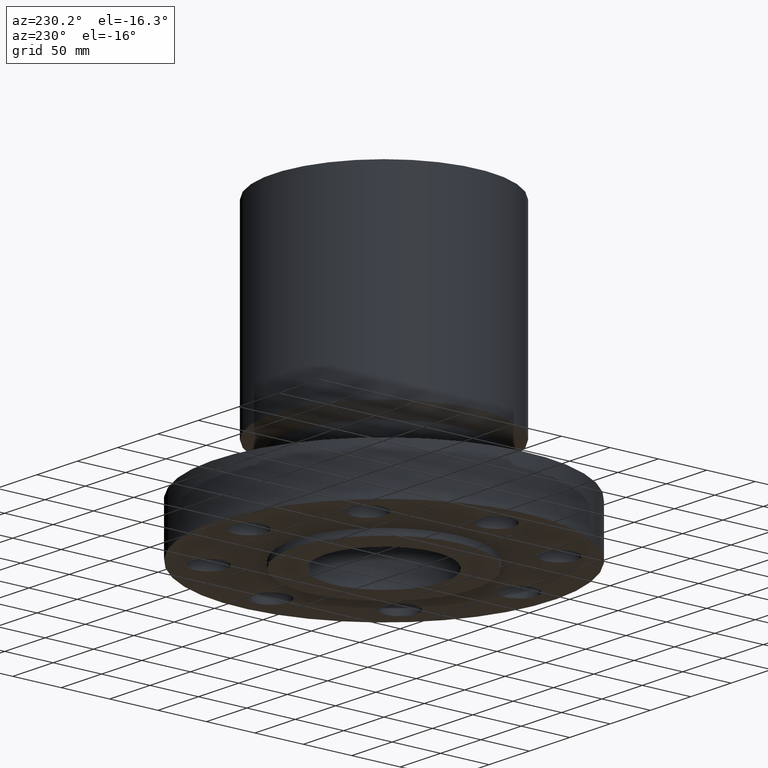
[diagram: clean part render]
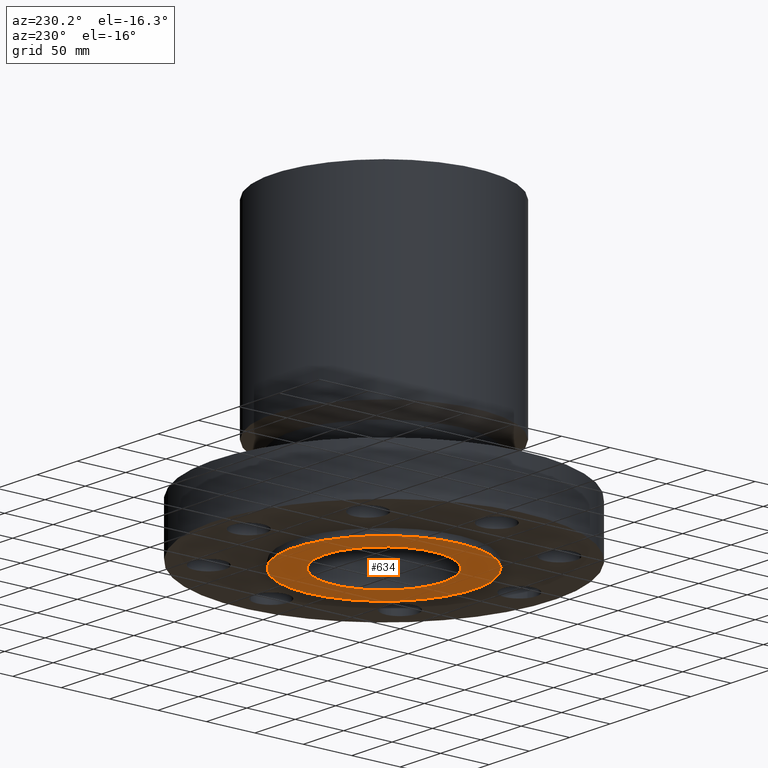
[diagram: same view with one face highlighted and labeled with its STEP entity id]
A machine part, auxiliary view. The second image highlights one B-rep face of the part: STEP entity #634.
In plain terms, the highlighted planar face has unit normal (0, 0, -1).
Its self-contained STEP definition (entity closure, byte-faithful):
#578=AXIS2_PLACEMENT_3D('Circle Axis2P3D',#576,#577,$) ;
#597=AXIS2_PLACEMENT_3D('Circle Axis2P3D',#595,#596,$) ;
#610=AXIS2_PLACEMENT_3D('Plane Axis2P3D',#607,#608,#609) ;
#614=AXIS2_PLACEMENT_3D('Circle Axis2P3D',#612,#613,$) ;
#623=AXIS2_PLACEMENT_3D('Circle Axis2P3D',#621,#622,$) ;
#573=CARTESIAN_POINT('Vertex',(1.15301842035,2.11058606135,-0.250000000001)) ;
#576=CARTESIAN_POINT('Axis2P3D Location',(0.,0.,-0.250000000001)) ;
#580=CARTESIAN_POINT('Vertex',(-1.15301842035,-2.11058606135,-0.250000000001)) ;
#595=CARTESIAN_POINT('Axis2P3D Location',(0.,0.,-0.250000000001)) ;
#607=CARTESIAN_POINT('Axis2P3D Location',(0.,2.40500000001,-0.250000000001)) ;
#612=CARTESIAN_POINT('Axis2P3D Location',(0.,0.,-0.250000000001)) ;
#616=CARTESIAN_POINT('Vertex',(-1.75230034361,-3.20756426372,-0.250000000001)) ;
#618=CARTESIAN_POINT('Vertex',(1.75230034361,3.20756426372,-0.250000000001)) ;
#621=CARTESIAN_POINT('Axis2P3D Location',(0.,0.,-0.250000000001)) ;
#577=DIRECTION('Axis2P3D Direction',(0.,0.,-0.0393700787402)) ;
#596=DIRECTION('Axis2P3D Direction',(0.,0.,-0.0393700787402)) ;
#608=DIRECTION('Axis2P3D Direction',(0.,0.,-0.0393700787402)) ;
#609=DIRECTION('Axis2P3D XDirection',(0.0393700787402,0.,0.)) ;
#613=DIRECTION('Axis2P3D Direction',(0.,0.,-0.0393700787402)) ;
#622=DIRECTION('Axis2P3D Direction',(0.,0.,-0.0393700787402)) ;
#627=ORIENTED_EDGE('',*,*,#620,.T.) ;
#628=ORIENTED_EDGE('',*,*,#625,.T.) ;
#631=ORIENTED_EDGE('',*,*,#582,.F.) ;
#632=ORIENTED_EDGE('',*,*,#599,.F.) ;
#633=FACE_BOUND('',#630,.T.) ;
#634=ADVANCED_FACE('PartBody',(#629,#633),#611,.T.) ;
#579=CIRCLE('generated circle',#578,2.40500000001) ;
#598=CIRCLE('generated circle',#597,2.40500000001) ;
#615=CIRCLE('generated circle',#614,3.65500000001) ;
#624=CIRCLE('generated circle',#623,3.65500000001) ;
#582=EDGE_CURVE('',#574,#581,#579,.T.) ;
#599=EDGE_CURVE('',#581,#574,#598,.T.) ;
#620=EDGE_CURVE('',#617,#619,#615,.T.) ;
#625=EDGE_CURVE('',#619,#617,#624,.T.) ;
#626=EDGE_LOOP('',(#627,#628)) ;
#630=EDGE_LOOP('',(#631,#632)) ;
#629=FACE_OUTER_BOUND('',#626,.T.) ;
#611=PLANE('',#610) ;
#574=VERTEX_POINT('',#573) ;
#581=VERTEX_POINT('',#580) ;
#617=VERTEX_POINT('',#616) ;
#619=VERTEX_POINT('',#618) ;